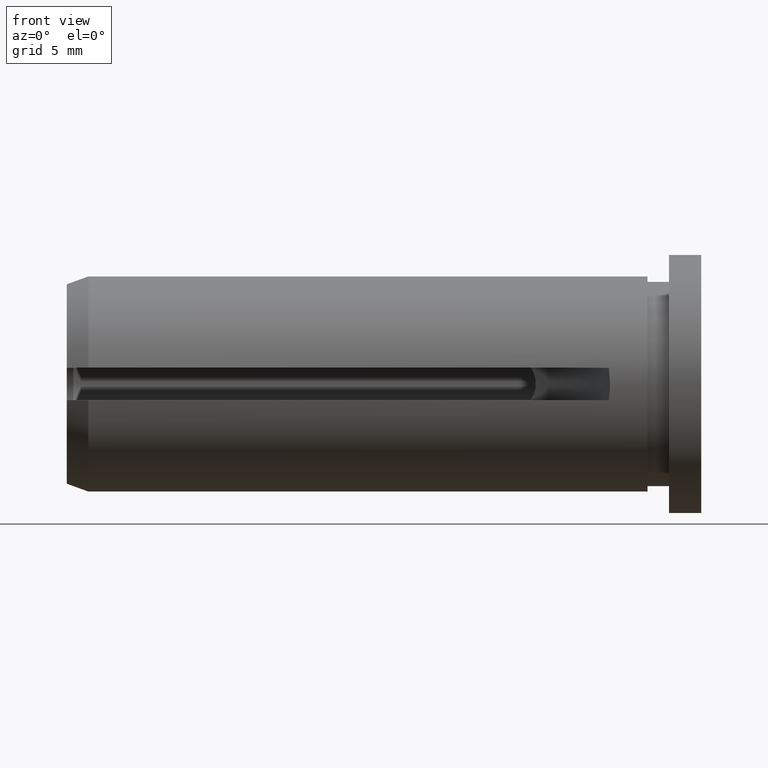
[diagram: clean part render]
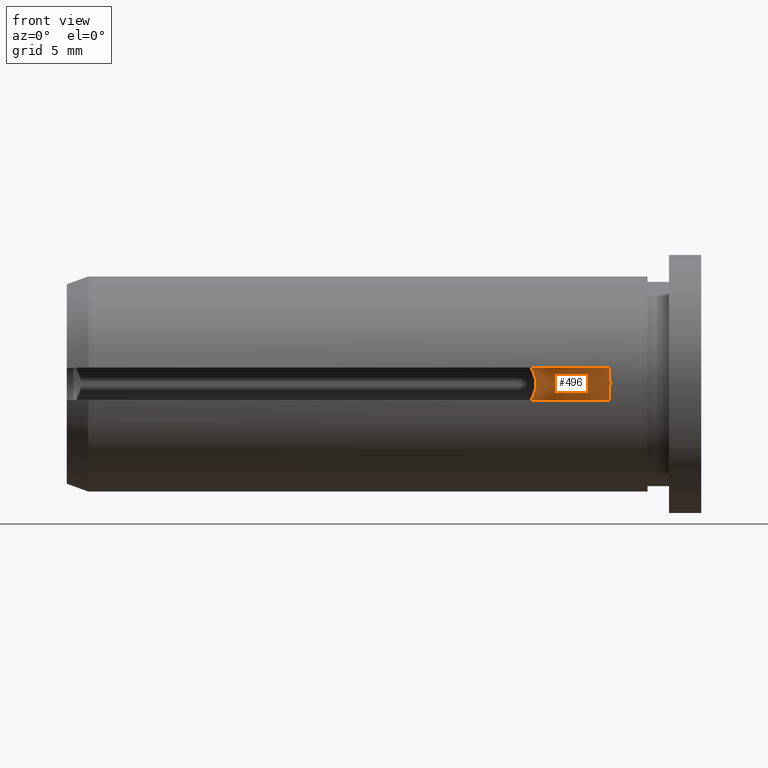
[diagram: same view with one face highlighted and labeled with its STEP entity id]
A machine part, front view. The second image highlights one B-rep face of the part: STEP entity #496.
In plain terms, the highlighted cylindrical surface (partial cylindrical patch) has radius 20 mm, axis along (-0, -0, 1).
Its self-contained STEP definition (entity closure, byte-faithful):
#7 = CARTESIAN_POINT ( 'NONE',  ( -4.260835336181543200, -4.981137054215166900, -0.5014636468800564000 ) ) ;
#8 = CARTESIAN_POINT ( 'NONE',  ( -7.913416396128379700, -1.854049621773917100, 0.7500000000000000000 ) ) ;
#12 = ORIENTED_EDGE ( 'NONE', *, *, #647, .T. ) ;
#18 = CARTESIAN_POINT ( 'NONE',  ( -7.697445877389423400, -1.999931202562466300, -0.1361388579924962800 ) ) ;
#23 = CIRCLE ( 'NONE', #197, 20.00000000000000400 ) ;
#102 = DIRECTION ( 'NONE',  ( -1.000000000000000000, 0.0000000000000000000, 0.0000000000000000000 ) ) ;
#109 = B_SPLINE_CURVE_WITH_KNOTS ( 'NONE', 3,
 ( #313, #354, #367, #535, #18, #139, #679, #331, #646, #148 ),
 .UNSPECIFIED., .F., .F.,
 ( 4, 2, 2, 2, 4 ),
 ( 3.252606517456513300E-019, 0.0004023250316434018600, 0.0008046500632868034900, 0.001206975094930205100, 0.001609300126573607200 ),
 .UNSPECIFIED. ) ;
#111 = EDGE_CURVE ( 'NONE', #685, #256, #109, .T. ) ;
#139 = CARTESIAN_POINT ( 'NONE',  ( -7.697245762896328900, -2.000068282858012300, 0.1341099084476960500 ) ) ;
#148 = CARTESIAN_POINT ( 'NONE',  ( -7.913416396128379700, -1.854049621773917100, 0.7500000000000000000 ) ) ;
#150 = CARTESIAN_POINT ( 'NONE',  ( -4.243564535185438300, -5.000088430392205300, -0.2485253730203543200 ) ) ;
#163 = CYLINDRICAL_SURFACE ( 'NONE', #216, 20.00000000000000400 ) ;
#178 = AXIS2_PLACEMENT_3D ( 'NONE', #733, #618, #102 ) ;
#184 = DIRECTION ( 'NONE',  ( 0.0000000000000000000, 0.0000000000000000000, 1.000000000000000000 ) ) ;
#197 = AXIS2_PLACEMENT_3D ( 'NONE', #457, #184, #215 ) ;
#205 = FACE_OUTER_BOUND ( 'NONE', #569, .T. ) ;
#209 = CARTESIAN_POINT ( 'NONE',  ( -4.295598979118936200, -4.943429983321294700, -0.7500000000000000000 ) ) ;
#215 = DIRECTION ( 'NONE',  ( -1.000000000000000000, 0.0000000000000000000, 0.0000000000000000000 ) ) ;
#216 = AXIS2_PLACEMENT_3D ( 'NONE', #297, #287, #314 ) ;
#235 = CARTESIAN_POINT ( 'NONE',  ( -7.913416396128379700, -1.854049621773917100, -0.7500000000000000000 ) ) ;
#256 = VERTEX_POINT ( 'NONE', #8 ) ;
#287 = DIRECTION ( 'NONE',  ( -0.0000000000000000000, -0.0000000000000000000, 1.000000000000000000 ) ) ;
#296 = ORIENTED_EDGE ( 'NONE', *, *, #701, .F. ) ;
#297 = CARTESIAN_POINT ( 'NONE',  ( -19.00000000000000400, -18.50000000000000000, -0.7500000000000000000 ) ) ;
#305 = CARTESIAN_POINT ( 'NONE',  ( -4.243726913101642900, -4.999910941058702800, 0.2520709310062866400 ) ) ;
#312 = B_SPLINE_CURVE_WITH_KNOTS ( 'NONE', 3,
 ( #330, #376, #305, #150, #7, #640 ),
 .UNSPECIFIED., .F., .F.,
 ( 4, 2, 4 ),
 ( 0.0000000000000000000, 0.0007504504051938812100, 0.001500900810387762400 ),
 .UNSPECIFIED. ) ;
#313 = CARTESIAN_POINT ( 'NONE',  ( -7.913416396128379700, -1.854049621773917100, -0.7500000000000000000 ) ) ;
#314 = DIRECTION ( 'NONE',  ( 1.000000000000000000, 0.0000000000000000000, 0.0000000000000000000 ) ) ;
#330 = CARTESIAN_POINT ( 'NONE',  ( -4.295598979118936200, -4.943429983321294700, 0.7500000000000000000 ) ) ;
#331 = CARTESIAN_POINT ( 'NONE',  ( -7.792695892615557600, -1.935024460188479200, 0.5220762314962836800 ) ) ;
#354 = CARTESIAN_POINT ( 'NONE',  ( -7.846938628574747600, -1.898325335147791100, -0.6405475071538619900 ) ) ;
#367 = CARTESIAN_POINT ( 'NONE',  ( -7.793129072448693700, -1.934730929272752100, -0.5232002068911348900 ) ) ;
#376 = CARTESIAN_POINT ( 'NONE',  ( -4.260838589378960400, -4.981133525570544200, 0.5014869050235275500 ) ) ;
#416 = ORIENTED_EDGE ( 'NONE', *, *, #567, .F. ) ;
#457 = CARTESIAN_POINT ( 'NONE',  ( -19.00000000000000400, -18.50000000000000000, -0.7500000000000000000 ) ) ;
#476 = VERTEX_POINT ( 'NONE', #209 ) ;
#496 = ADVANCED_FACE ( 'NONE', ( #205 ), #163, .F. ) ;
#535 = CARTESIAN_POINT ( 'NONE',  ( -7.717418968951297300, -1.986203929737796500, -0.2681719125293928200 ) ) ;
#539 = CARTESIAN_POINT ( 'NONE',  ( -4.295598979118936200, -4.943429983321294700, 0.7500000000000000000 ) ) ;
#567 = EDGE_CURVE ( 'NONE', #653, #476, #312, .T. ) ;
#569 = EDGE_LOOP ( 'NONE', ( #296, #416, #12, #677 ) ) ;
#618 = DIRECTION ( 'NONE',  ( 0.0000000000000000000, 0.0000000000000000000, 1.000000000000000000 ) ) ;
#640 = CARTESIAN_POINT ( 'NONE',  ( -4.295598979118936200, -4.943429983321294700, -0.7500000000000000000 ) ) ;
#646 = CARTESIAN_POINT ( 'NONE',  ( -7.846901991300316400, -1.898349736410370300, 0.6404871856183227400 ) ) ;
#647 = EDGE_CURVE ( 'NONE', #653, #256, #734, .T. ) ;
#653 = VERTEX_POINT ( 'NONE', #539 ) ;
#677 = ORIENTED_EDGE ( 'NONE', *, *, #111, .F. ) ;
#679 = CARTESIAN_POINT ( 'NONE',  ( -7.717265110662444800, -1.986309515832772600, 0.2673158437752077300 ) ) ;
#685 = VERTEX_POINT ( 'NONE', #235 ) ;
#701 = EDGE_CURVE ( 'NONE', #476, #685, #23, .T. ) ;
#733 = CARTESIAN_POINT ( 'NONE',  ( -19.00000000000000400, -18.50000000000000000, 0.7500000000000000000 ) ) ;
#734 = CIRCLE ( 'NONE', #178, 20.00000000000000400 ) ;